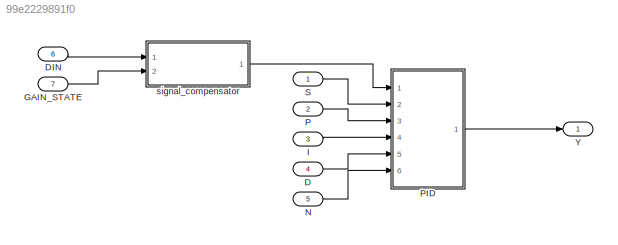
MODEL slx_99e2229891f0
KIND model
CONFIG AbsTol = auto
CONFIG EnableMultiTasking = off
CONFIG FixedStep = auto
CONFIG MaxStep = auto
CONFIG MinStep = auto
CONFIG RelTol = 1e-3
CONFIG SampleTimeConstraint = Unconstrained
CONFIG SolverName = VariableStepAuto
CONFIG StartTime = 0.0
CONFIG StopTime = 10.0
BLOCK [Inport] D
  OutDataTypeStr = fixdt(1,32,24)
  Port = 4
BLOCK [Inport] DIN
  OutDataTypeStr = fixdt(1,32,16)
  OutMax = 256
  OutMin = -255
  Port = 6
BLOCK [Inport] GAIN_STATE
  OutDataTypeStr = fixdt(1,8)
  OutMax = 12
  OutMin = 0
  Port = 7
BLOCK [Inport] I
  OutDataTypeStr = fixdt(1,32,24)
  Port = 3
BLOCK [Inport] N
  OutDataTypeStr = fixdt(1,32,24)
  Port = 5
BLOCK [Inport] P
  OutDataTypeStr = fixdt(1,32,24)
  Port = 2
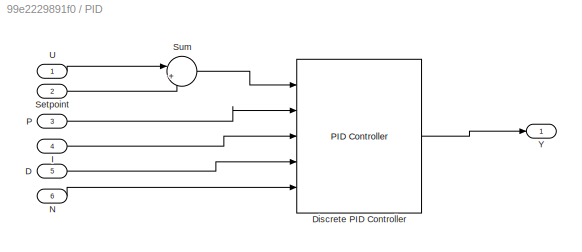
BLOCK [SubSystem] PID
  Ports = [6, 1]
  RequestExecContextInheritance = off
BLOCK [Inport] PID/D
  Port = 5
BLOCK [Reference] PID/Discrete PID Controller  REF=slpidlib/PID Controller
  Ports = [5, 1]
  SourceBlock = slpidlib/PID Controller
  SourceProductBaseCode = SL
  SourceType = PID 1dof
BLOCK [Inport] PID/I
  Port = 4
BLOCK [Inport] PID/N
  Port = 6
BLOCK [Inport] PID/P
  Port = 3
BLOCK [Inport] PID/Setpoint
  Port = 2
BLOCK [Sum] PID/Sum
  Inputs = |+-
  Ports = [2, 1]
BLOCK [Inport] PID/U
BLOCK [Outport] PID/Y
BLOCK [Inport] S
  OutDataTypeStr = fixdt(1,32,24)
BLOCK [Outport] Y
  OutDataTypeStr = fixdt(1,20)
  OutMax = 1024
  OutMin = -1023
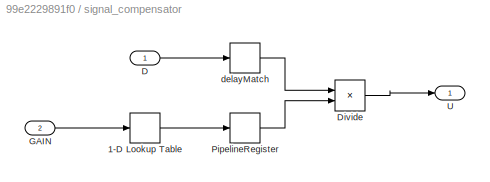
BLOCK [SubSystem] signal_compensator
  Ports = [2, 1]
  RequestExecContextInheritance = off
BLOCK [Lookup_n-D] signal_compensator/1-D Lookup Table
  BreakpointsForDimension1 = fi("numerictype",numerictype(1,8,3),"fimath",fimath("RoundingMethod", "Nearest","OverflowAction", "Saturate","ProductMode","FullPrecision","SumMode","FullPrecision"),"Value","[1 2 3 4 5 6 7 8 9 10 11 12]")
  DiagnosticForOutOfRangeInput = Error
  ExtrapMethod = Clip
  InputPortMap = u0
  InterpMethod = Flat
  NumberOfTableDimensions = 1
  OutDataTypeStr = fixdt(1, 20, 8)
  Ports = [1, 1]
  RndMeth = Simplest
  SampleTime = 1
  Table = reshape(fi("numerictype",numerictype(1,20,8),"fimath",fimath("RoundingMethod", "Floor","OverflowAction", "Wrap","ProductMode","FullPrecision","SumMode","FullPrecision"),"Value","[0.125;0.15625;0.3125;0.625;1.25;2.5;5;10;20;40;80;160]"), [1  12])
BLOCK [Inport] signal_compensator/D
  OutDataTypeStr = fixdt(1, 32, 16)
  OutMax = 32767
  OutMin = -32767
  PortDimensions = 1
  SampleTime = 1
BLOCK [Product] signal_compensator/Divide
  Inputs = */
  OutDataTypeStr = fixdt(1, 24, 8)
  Ports = [2, 1]
  RndMeth = Simplest
  SampleTime = 1
  SaturateOnIntegerOverflow = on
BLOCK [Inport] signal_compensator/GAIN
  OutDataTypeStr = fixdt(1, 8, 3)
  OutMax = 12
  OutMin = 0
  Port = 2
  PortDimensions = 1
  SampleTime = 1
BLOCK [Delay] signal_compensator/PipelineRegister
  DelayLength = double(1)
  InitialCondition = 0
  InputPortMap = u0
  Ports = [1, 1]
  SampleTime = 1
BLOCK [Outport] signal_compensator/U
  OutDataTypeStr = fixdt(1,24,8)
  SampleTime = 1
BLOCK [Delay] signal_compensator/delayMatch
  DelayLength = double(1)
  InitialCondition = 0
  InputPortMap = u0
  Ports = [1, 1]
  SampleTime = 1
LINE D:1 -> PID:5
LINE DIN:1 -> signal_compensator:1
LINE GAIN_STATE:1 -> signal_compensator:2
LINE I:1 -> PID:4
LINE N:1 -> PID:6
LINE P:1 -> PID:3
LINE PID/D:1 -> PID/Discrete PID Controller:4
LINE PID/Discrete PID Controller:1 -> PID/Y:1
LINE PID/I:1 -> PID/Discrete PID Controller:3
LINE PID/N:1 -> PID/Discrete PID Controller:5
LINE PID/P:1 -> PID/Discrete PID Controller:2
LINE PID/Setpoint:1 -> PID/Sum:2
LINE PID/Sum:1 -> PID/Discrete PID Controller:1
LINE PID/U:1 -> PID/Sum:1
LINE PID:1 -> Y:1
LINE S:1 -> PID:2
LINE signal_compensator/1-D Lookup Table:1 -> signal_compensator/PipelineRegister:1
LINE signal_compensator/D:1 -> signal_compensator/delayMatch:1
LINE signal_compensator/Divide:1 -> signal_compensator/U:1
LINE signal_compensator/GAIN:1 -> signal_compensator/1-D Lookup Table:1
LINE signal_compensator/PipelineRegister:1 -> signal_compensator/Divide:2
LINE signal_compensator/delayMatch:1 -> signal_compensator/Divide:1
LINE signal_compensator:1 -> PID:1
